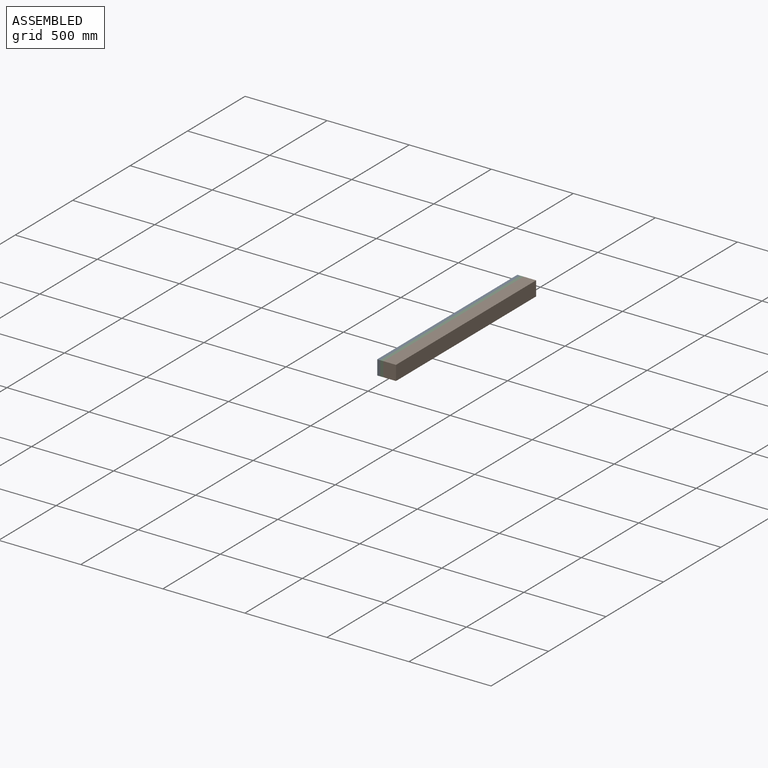
[diagram: assembled view]
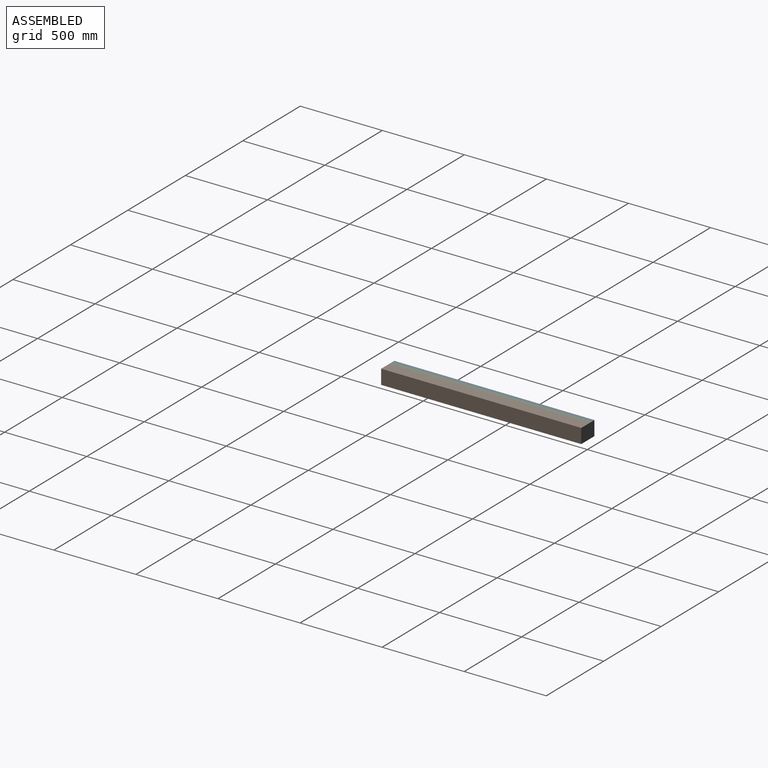
[diagram: assembled view, second angle]
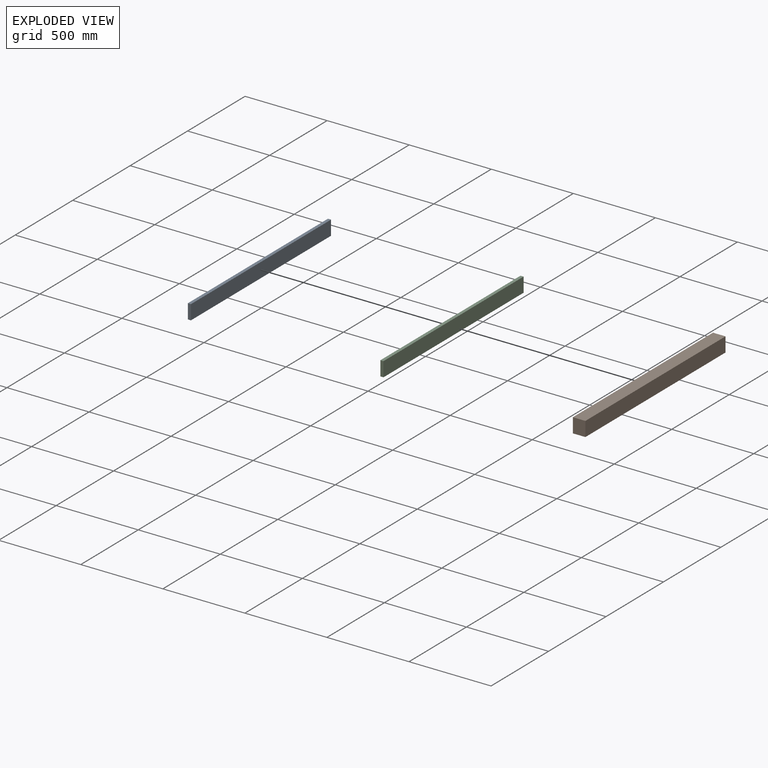
[diagram: exploded view]
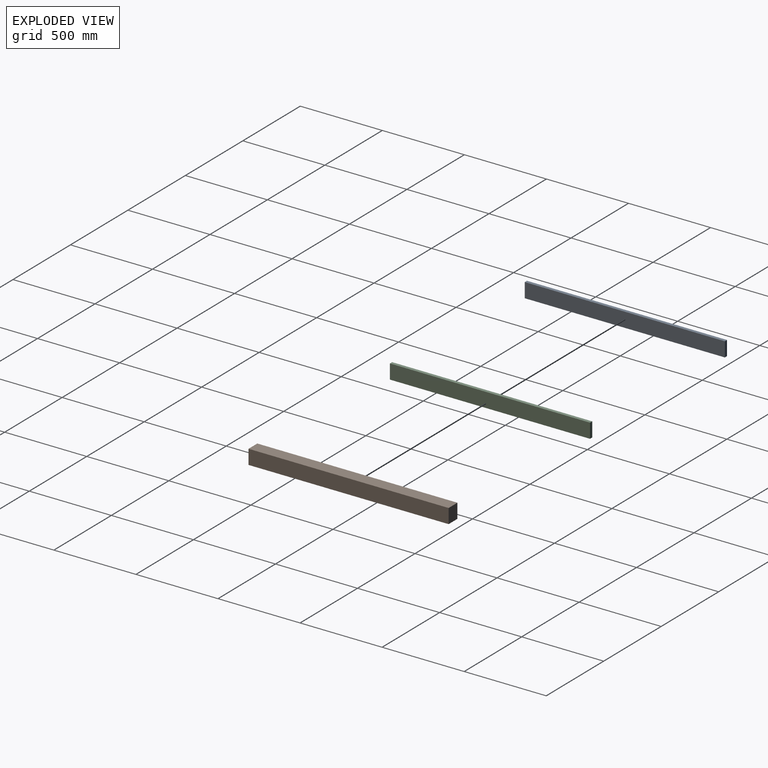
[diagram: exploded view, second angle]
ASSEMBLY  parts=3 mates=6
PART A: 6 faces, bbox 19.1x1219.2x88.9 mm
  f0: plane 88.9x19.05mm, normal (0,1,0), area 1693.5mm2, adj f1,f3,f4,f5
  f1: plane 1219.2x19.05mm, normal (0,0,1), area 23225.8mm2, adj f0,f2,f4,f5
  f2: plane 88.9x19.05mm, normal (0,-1,0), area 1693.5mm2, adj f1,f3,f4,f5
  f3: plane 1219.2x19.05mm, normal (0,0,-1), area 23225.8mm2, adj f0,f2,f4,f5
  f4: plane 1219.2x88.9mm, normal (1,0,0), area 108386.9mm2, adj f0,f1,f2,f3
  f5: plane 1219.2x88.9mm, normal (-1,0,0), area 108386.9mm2, adj f0,f1,f2,f3
PART B: 6 faces, bbox 76.2x1219.2x88.9 mm
  f0: plane 88.9x76.2mm, normal (0,1,0), area 6774.2mm2, adj f1,f3,f4,f5
  f1: plane 1219.2x76.2mm, normal (0,0,1), area 92903mm2, adj f0,f2,f4,f5
  f2: plane 88.9x76.2mm, normal (0,-1,0), area 6774.2mm2, adj f1,f3,f4,f5
  f3: plane 1219.2x76.2mm, normal (0,0,-1), area 92903mm2, adj f0,f2,f4,f5
  f4: plane 1219.2x88.9mm, normal (1,0,0), area 108386.9mm2, adj f0,f1,f2,f3
  f5: plane 1219.2x88.9mm, normal (-1,0,0), area 108386.9mm2, adj f0,f1,f2,f3
PART C: same geometry as A
PLACE A t=(120.35,17.69,-61.19)mm
PLACE B t=(158.45,17.69,-61.19)mm
PLACE C t=(139.4,17.69,-61.19)mm
MATE planar C.f1 <-> B.f1  axis (0,0,1) through (148.92,17.69,-16.74)mm
MATE planar A.f2 <-> C.f2  axis (0,-1,0) through (129.87,-591.91,-16.74)mm
MATE planar A.f4 <-> C.f5  axis (1,0,0) through (139.4,17.69,-61.19)mm
MATE planar C.f4 <-> B.f5  axis (1,0,0) through (158.45,17.69,-61.19)mm
MATE planar C.f2 <-> B.f2  axis (0,-1,0) through (148.92,-591.91,-61.19)mm
MATE planar A.f1 <-> C.f1  axis (0,0,1) through (129.87,17.69,-16.74)mm
